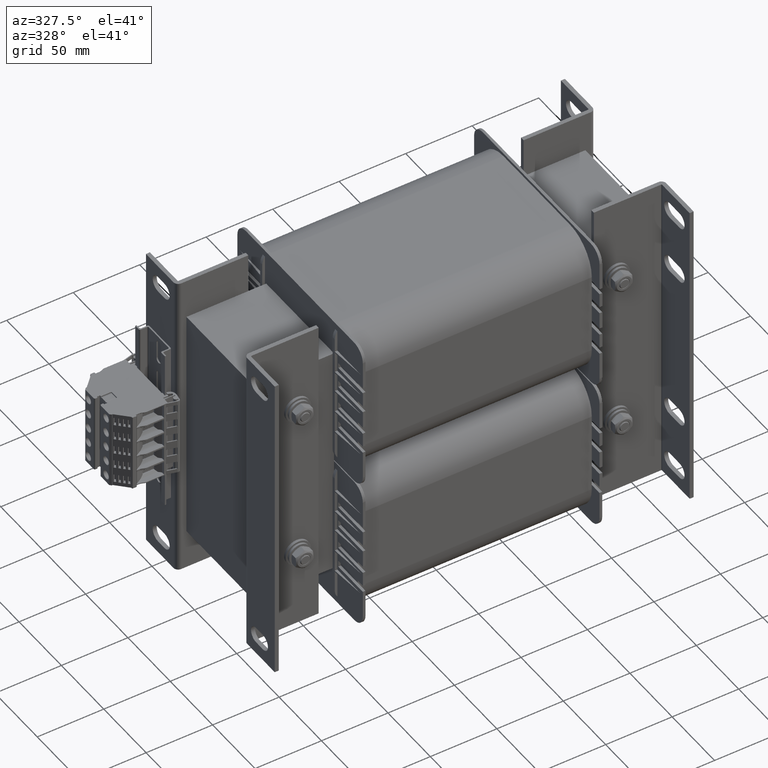
[diagram: clean part render]
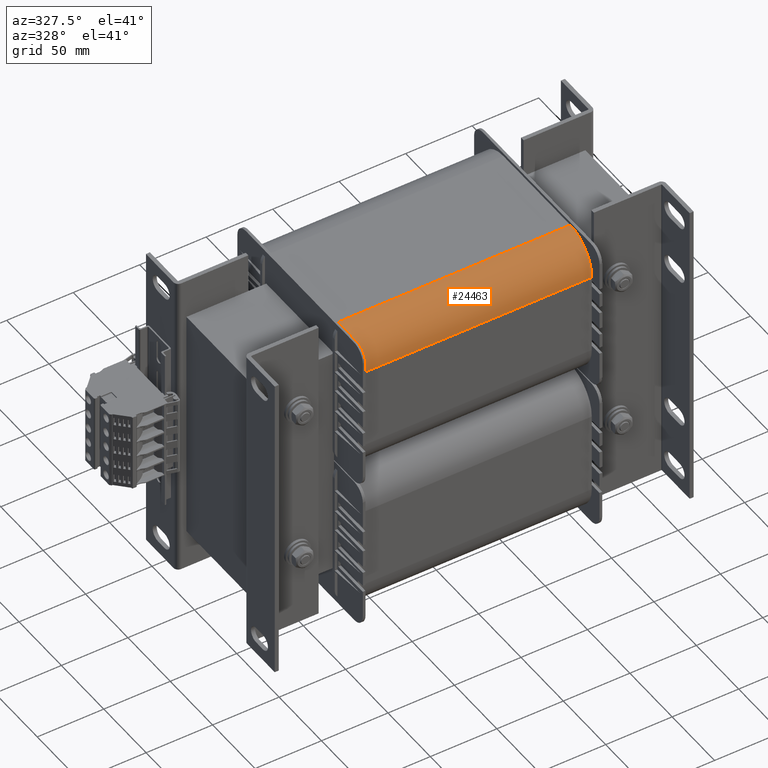
[diagram: same view with one face highlighted and labeled with its STEP entity id]
A machine part, auxiliary view. The second image highlights one B-rep face of the part: STEP entity #24463.
In plain terms, the highlighted cylindrical surface (partial cylindrical patch) has radius 25.3692 mm, axis along (1, -0, -0).
Its self-contained STEP definition (entity closure, byte-faithful):
#1185=CIRCLE('',#26212,25.3691630029813);
#1186=CIRCLE('',#26213,25.3691630029813);
#1986=CYLINDRICAL_SURFACE('',#26211,25.3691630029813);
#2509=FACE_OUTER_BOUND('',#3903,.T.);
#3903=EDGE_LOOP('',(#16898,#16899,#16900,#16901));
#5404=LINE('',#36146,#8001);
#5415=LINE('',#36163,#8012);
#8001=VECTOR('',#28926,10.);
#8012=VECTOR('',#28941,10.);
#10603=VERTEX_POINT('',#36143);
#10604=VERTEX_POINT('',#36145);
#10607=VERTEX_POINT('',#36160);
#10608=VERTEX_POINT('',#36162);
#13009=EDGE_CURVE('',#10604,#10603,#5404,.T.);
#13020=EDGE_CURVE('',#10607,#10603,#1185,.T.);
#13021=EDGE_CURVE('',#10608,#10607,#5415,.T.);
#13022=EDGE_CURVE('',#10604,#10608,#1186,.T.);
#16898=ORIENTED_EDGE('',*,*,#13020,.F.);
#16899=ORIENTED_EDGE('',*,*,#13021,.F.);
#16900=ORIENTED_EDGE('',*,*,#13022,.F.);
#16901=ORIENTED_EDGE('',*,*,#13009,.T.);
#24463=ADVANCED_FACE('',(#2509),#1986,.T.);
#26211=AXIS2_PLACEMENT_3D('',#36159,#28937,#28938);
#26212=AXIS2_PLACEMENT_3D('',#36161,#28939,#28940);
#26213=AXIS2_PLACEMENT_3D('',#36164,#28942,#28943);
#28926=DIRECTION('',(0.,1.,0.));
#28937=DIRECTION('center_axis',(0.,1.,0.));
#28938=DIRECTION('ref_axis',(-7.0020317153999E-16,0.,-1.));
#28939=DIRECTION('center_axis',(0.,1.,0.));
#28940=DIRECTION('ref_axis',(-7.0020317153999E-16,0.,-1.));
#28941=DIRECTION('',(0.,1.,0.));
#28942=DIRECTION('center_axis',(0.,-1.,0.));
#28943=DIRECTION('ref_axis',(-7.0020317153999E-16,0.,-1.));
#36143=CARTESIAN_POINT('',(-74.8691630029814,178.,-30.5));
#36145=CARTESIAN_POINT('',(-74.8691630029814,2.,-30.5));
#36146=CARTESIAN_POINT('',(-74.8691630029814,2.,-30.5));
#36159=CARTESIAN_POINT('Origin',(-49.5,2.,-30.5));
#36160=CARTESIAN_POINT('',(-49.5,178.,-55.8691630029814));
#36161=CARTESIAN_POINT('Origin',(-49.5,178.,-30.5));
#36162=CARTESIAN_POINT('',(-49.5,2.,-55.8691630029814));
#36163=CARTESIAN_POINT('',(-49.5,2.,-55.8691630029814));
#36164=CARTESIAN_POINT('Origin',(-49.5,2.,-30.5));